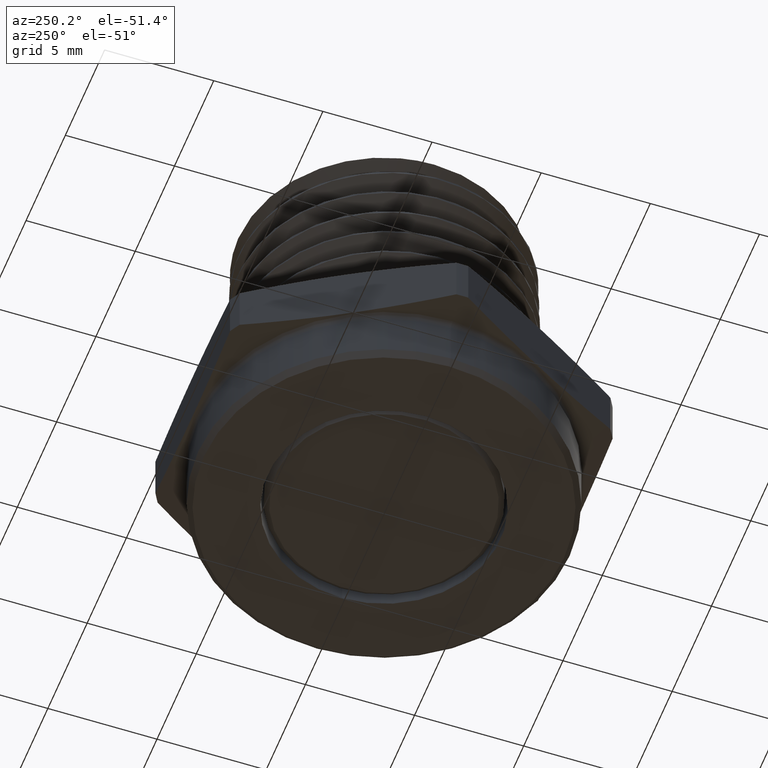
[diagram: clean part render]
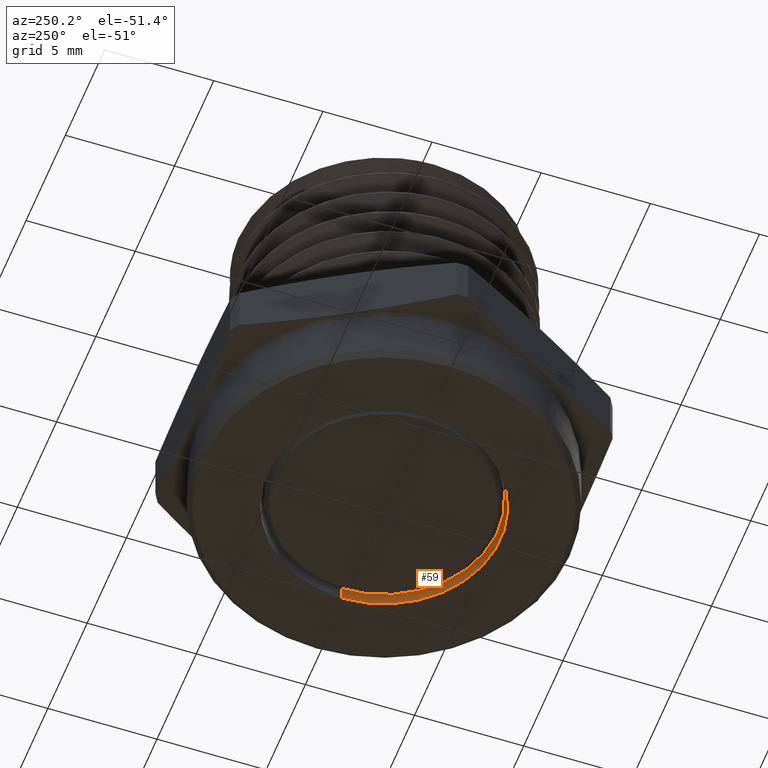
[diagram: same view with one face highlighted and labeled with its STEP entity id]
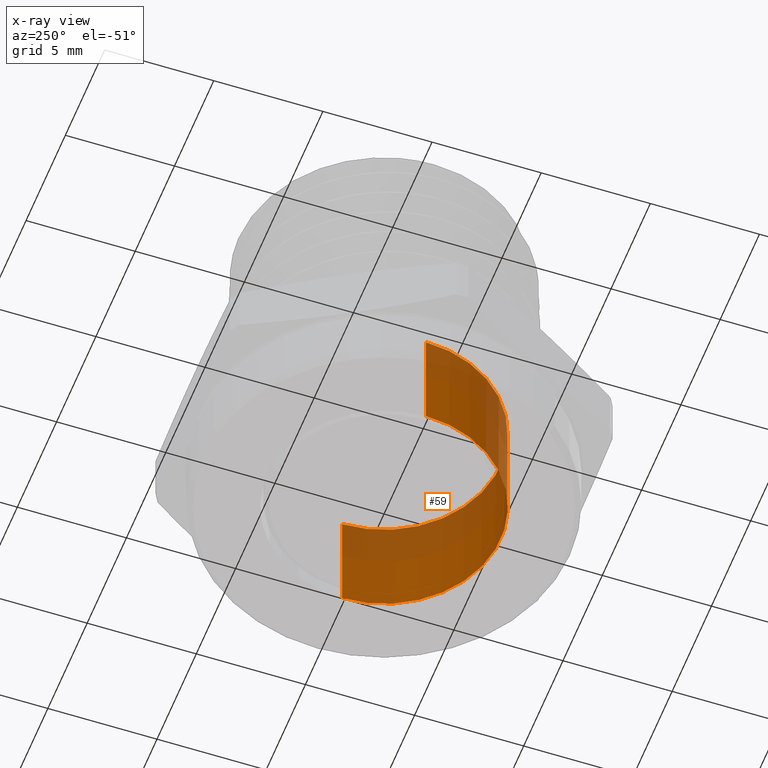
[diagram: x-ray of the same camera — body ghosted, the highlighted face saturated]
A machine part, auxiliary view. The second image highlights one B-rep face of the part: STEP entity #59.
The next image is the same camera in x-ray: the body ghosted, the highlighted face saturated — about 42% of this face is hidden behind the body in this view.
In plain terms, the highlighted cylindrical surface (partial cylindrical patch) has radius 5.334 mm, axis along (-0, -0, -1).
Its self-contained STEP definition (entity closure, byte-faithful):
#59 = ADVANCED_FACE ( 'NONE', ( #753 ), #756, .F. ) ;
#130 = EDGE_CURVE ( 'NONE', #544, #510, #1319, .T. ) ;
#141 = EDGE_CURVE ( 'NONE', #510, #557, #1334, .T. ) ;
#142 = EDGE_CURVE ( 'NONE', #557, #561, #1336, .T. ) ;
#143 = EDGE_CURVE ( 'NONE', #544, #561, #1338, .T. ) ;
#510 = VERTEX_POINT ( 'NONE', #4065 ) ;
#544 = VERTEX_POINT ( 'NONE', #4082 ) ;
#557 = VERTEX_POINT ( 'NONE', #4093 ) ;
#561 = VERTEX_POINT ( 'NONE', #4097 ) ;
#654 = EDGE_LOOP ( 'NONE', ( #778, #5340, #5341, #5338 ) ) ;
#753 = FACE_OUTER_BOUND ( 'NONE', #654, .T. ) ;
#756 = CYLINDRICAL_SURFACE ( 'NONE', #791, 0.2100000000000000200 ) ;
#778 = ORIENTED_EDGE ( 'NONE', *, *, #130, .T. ) ;
#791 = AXIS2_PLACEMENT_3D ( 'NONE', #5413, #5414, #5412 ) ;
#853 = AXIS2_PLACEMENT_3D ( 'NONE', #1732, #1733, #1734 ) ;
#860 = AXIS2_PLACEMENT_3D ( 'NONE', #1764, #1765, #1766 ) ;
#1319 = CIRCLE ( 'NONE', #853, 0.2100000000000000200 ) ;
#1334 = LINE ( 'NONE', #1762, #1337 ) ;
#1336 = CIRCLE ( 'NONE', #860, 0.2100000000000000200 ) ;
#1337 = VECTOR ( 'NONE', #1763, 39.37007874015748100 ) ;
#1338 = LINE ( 'NONE', #1757, #1340 ) ;
#1340 = VECTOR ( 'NONE', #1758, 39.37007874015748100 ) ;
#1732 = CARTESIAN_POINT ( 'NONE',  ( 2.371999751895700000E-017, 0.0000000000000000000, 0.1009999999999999400 ) ) ;
#1733 = DIRECTION ( 'NONE',  ( 1.241027080502703100E-016, 0.0000000000000000000, 1.000000000000000000 ) ) ;
#1734 = DIRECTION ( 'NONE',  ( 1.000000000000000000, 0.0000000000000000000, -1.626099996228727900E-016 ) ) ;
#1757 = CARTESIAN_POINT ( 'NONE',  ( -0.2100000000000000200, 0.0000000000000000000, -0.09999999999999997800 ) ) ;
#1758 = DIRECTION ( 'NONE',  ( -1.241027080502703100E-016, -0.0000000000000000000, -1.000000000000000000 ) ) ;
#1762 = CARTESIAN_POINT ( 'NONE',  ( 0.2100000000000000200, 2.571758278209442200E-017, -0.1000000000000000500 ) ) ;
#1763 = DIRECTION ( 'NONE',  ( -1.241027080502703100E-016, -0.0000000000000000000, -1.000000000000000000 ) ) ;
#1764 = CARTESIAN_POINT ( 'NONE',  ( -1.224646799147328900E-018, 0.0000000000000000000, -0.1000000000000000200 ) ) ;
#1765 = DIRECTION ( 'NONE',  ( -1.241027080502703100E-016, -0.0000000000000000000, -1.000000000000000000 ) ) ;
#1766 = DIRECTION ( 'NONE',  ( -1.000000000000000000, 0.0000000000000000000, 1.626099996228727900E-016 ) ) ;
#4065 = CARTESIAN_POINT ( 'NONE',  ( 0.2100000000000000500, 2.571758278209442800E-017, 0.1009999999999999100 ) ) ;
#4082 = CARTESIAN_POINT ( 'NONE',  ( -0.2099999999999999900, 0.0000000000000000000, 0.1009999999999999800 ) ) ;
#4093 = CARTESIAN_POINT ( 'NONE',  ( 0.2100000000000000200, 2.571758278209442200E-017, -0.1000000000000000600 ) ) ;
#4097 = CARTESIAN_POINT ( 'NONE',  ( -0.2100000000000000200, 0.0000000000000000000, -0.09999999999999999200 ) ) ;
#5338 = ORIENTED_EDGE ( 'NONE', *, *, #143, .F. ) ;
#5340 = ORIENTED_EDGE ( 'NONE', *, *, #141, .T. ) ;
#5341 = ORIENTED_EDGE ( 'NONE', *, *, #142, .T. ) ;
#5412 = DIRECTION ( 'NONE',  ( -1.000000000000000000, 0.0000000000000000000, 1.626099996228727900E-016 ) ) ;
#5413 = CARTESIAN_POINT ( 'NONE',  ( -1.224646799147327800E-018, 0.0000000000000000000, -0.1000000000000000100 ) ) ;
#5414 = DIRECTION ( 'NONE',  ( -1.241027080502703100E-016, -0.0000000000000000000, -1.000000000000000000 ) ) ;